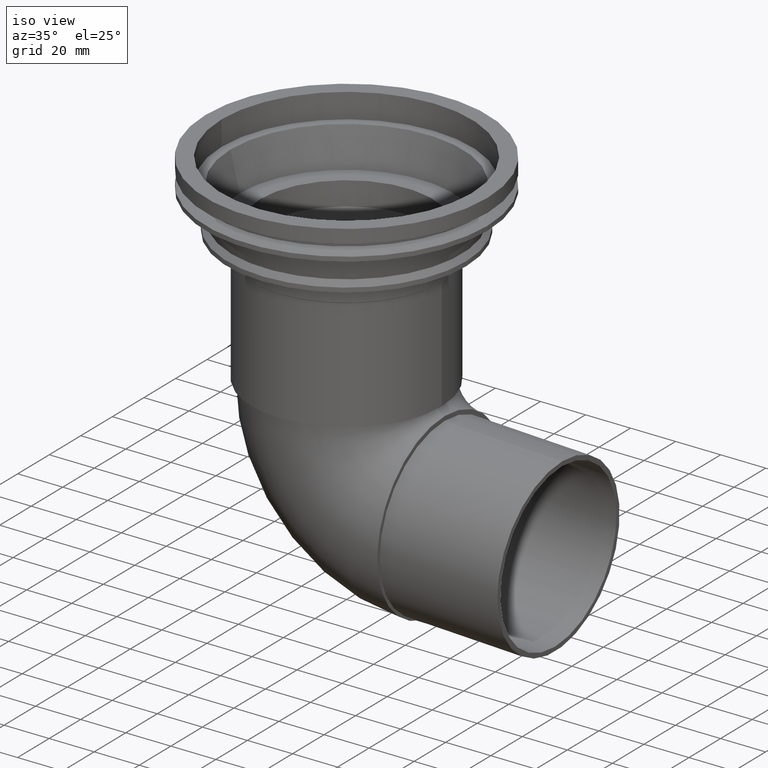
[diagram: clean part render]
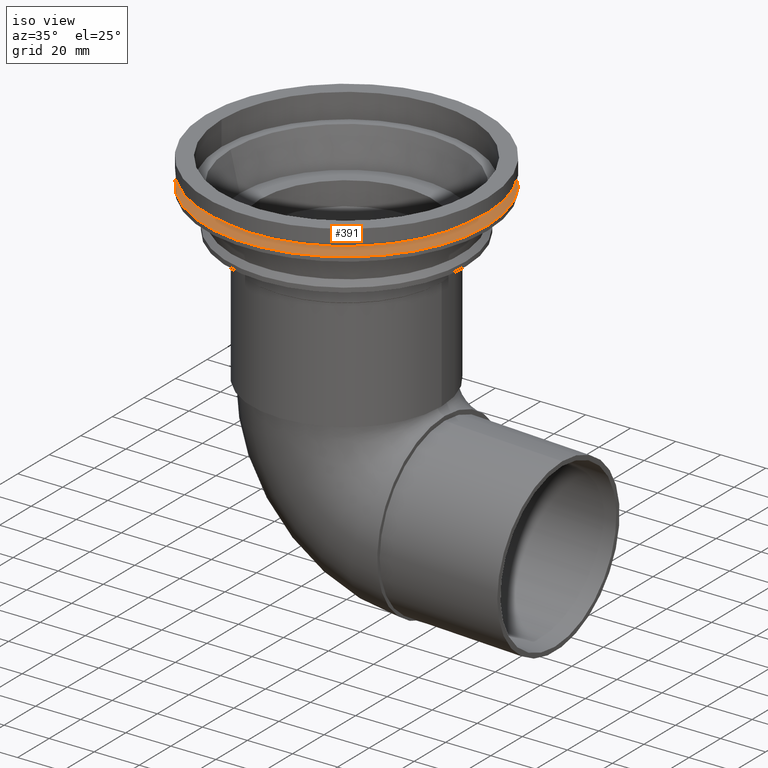
[diagram: same view with one face highlighted and labeled with its STEP entity id]
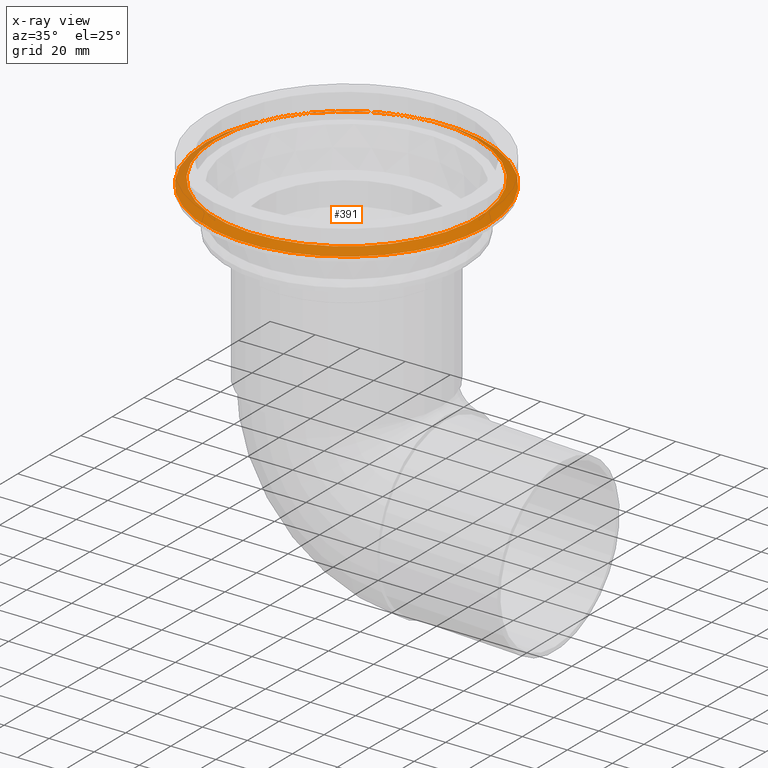
[diagram: x-ray of the same camera — body ghosted, the highlighted face saturated]
A machine part, iso view. The second image highlights one B-rep face of the part: STEP entity #391.
The next image is the same camera in x-ray: the body ghosted, the highlighted face saturated — about 0% of this face is hidden behind the body in this view.
In plain terms, the highlighted conical surface has half-angle 62.791 deg.
Its self-contained STEP definition (entity closure, byte-faithful):
#87=ORIENTED_EDGE('',*,*,#138,.T.);
#88=ORIENTED_EDGE('',*,*,#137,.F.);
#137=EDGE_CURVE('',#172,#172,#207,.T.);
#138=EDGE_CURVE('',#173,#173,#208,.T.);
#172=VERTEX_POINT('',#697);
#173=VERTEX_POINT('',#700);
#207=CIRCLE('',#461,62.498);
#208=CIRCLE('',#463,58.25);
#262=EDGE_LOOP('',(#87));
#263=EDGE_LOOP('',(#88));
#332=FACE_BOUND('',#262,.T.);
#333=FACE_BOUND('',#263,.T.);
#369=CONICAL_SURFACE('',#462,62.498,1.09591323553613);
#391=ADVANCED_FACE('',(#332,#333),#369,.T.);
#461=AXIS2_PLACEMENT_3D('',#696,#576,#577);
#462=AXIS2_PLACEMENT_3D('',#698,#578,#579);
#463=AXIS2_PLACEMENT_3D('',#699,#580,#581);
#576=DIRECTION('',(0.,0.,-1.));
#577=DIRECTION('',(-1.,0.,0.));
#578=DIRECTION('',(0.,0.,-1.));
#579=DIRECTION('',(-1.,0.,0.));
#580=DIRECTION('',(0.,0.,-1.));
#581=DIRECTION('',(-1.,0.,0.));
#696=CARTESIAN_POINT('',(0.,0.,-11.184));
#697=CARTESIAN_POINT('',(-62.498,0.,-11.184));
#698=CARTESIAN_POINT('',(0.,0.,-11.184));
#699=CARTESIAN_POINT('',(0.,0.,-9.00000000000001));
#700=CARTESIAN_POINT('',(-58.25,0.,-9.00000000000001));